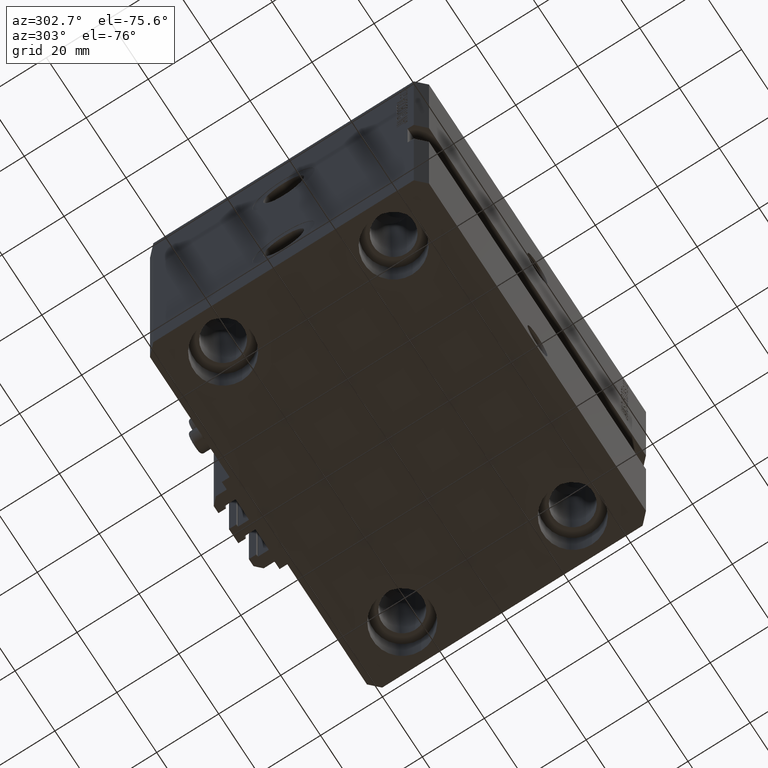
[diagram: clean part render]
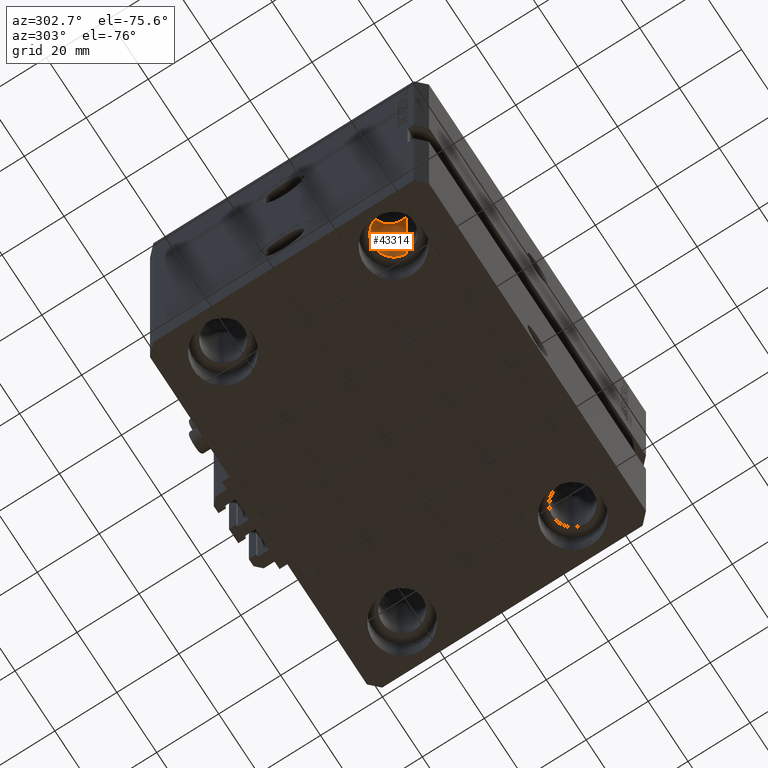
[diagram: same view with one face highlighted and labeled with its STEP entity id]
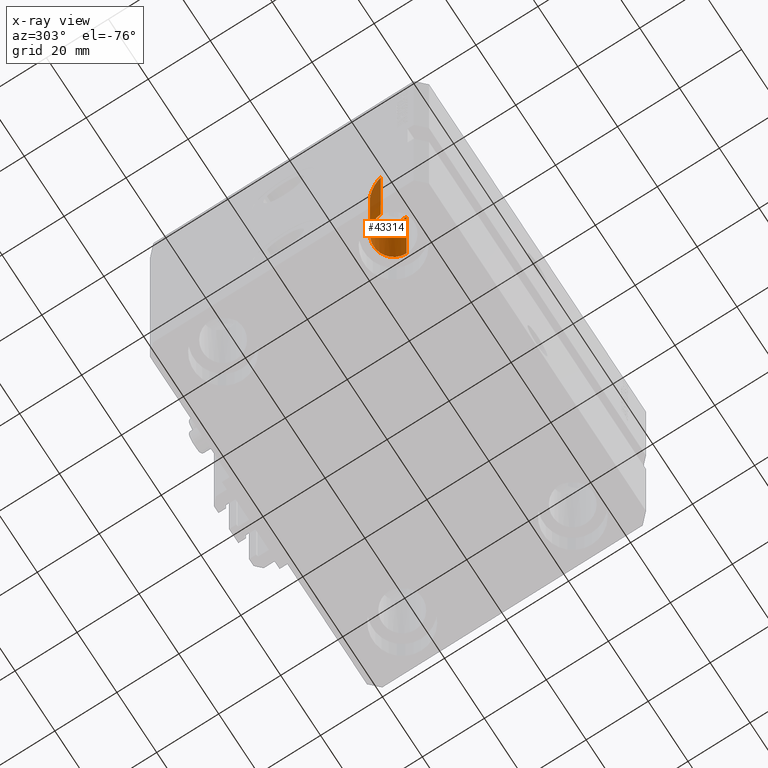
[diagram: x-ray of the same camera — body ghosted, the highlighted face saturated]
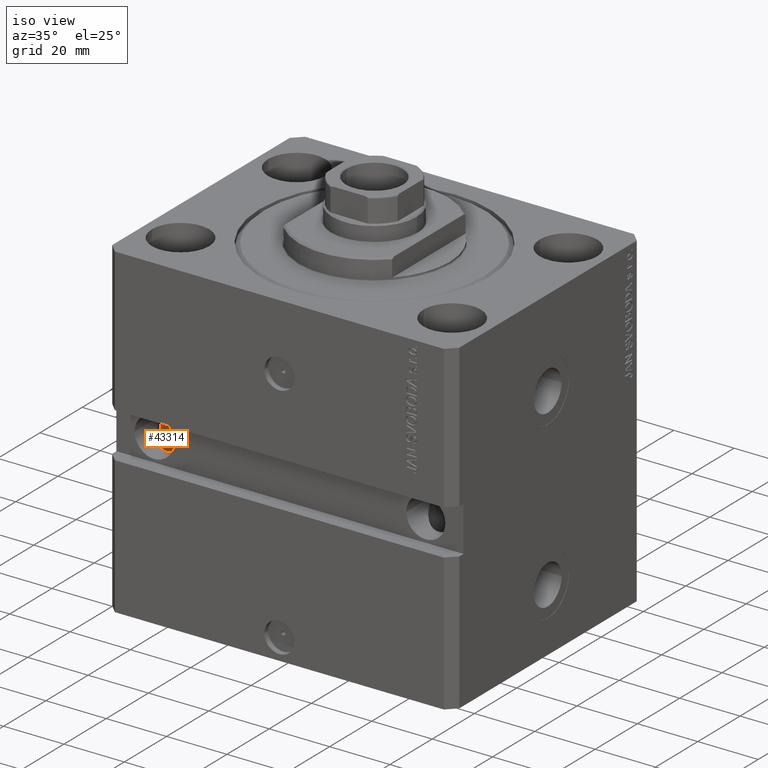
[diagram: same view with one face highlighted and labeled with its STEP entity id]
A machine part, auxiliary view. The second image highlights one B-rep face of the part: STEP entity #43314.
The next image is the same camera in x-ray: the body ghosted, the highlighted face saturated — about 18% of this face is hidden behind the body in this view.
A second angle (iso view) of the same face is appended — the face is thin or edge-on in the first view.
In plain terms, the highlighted cylindrical surface (edge-blend (fillet) strip) has radius 6.5 mm, axis along (0, 0, 1).
Its self-contained STEP definition (entity closure, byte-faithful):
#2239 = DIRECTION ( 'NONE',  ( 1.000000000000000000, 0.000000000000000000, 0.000000000000000000 ) ) ;
#2582 = VERTEX_POINT ( 'NONE', #34068 ) ;
#4122 = CARTESIAN_POINT ( 'NONE',  ( -51.49999999999999289, -27.49999999999999289, -55.00000000000001421 ) ) ;
#4680 =( BOUNDED_CURVE ( )  B_SPLINE_CURVE ( 3, ( #19077, #38201, #42183, #4122 ),
 .UNSPECIFIED., .F., .T. ) 
 B_SPLINE_CURVE_WITH_KNOTS ( ( 4, 4 ),
 ( 1.570796326794896558, 4.712388980384689674 ),
 .UNSPECIFIED. ) 
 CURVE ( )  GEOMETRIC_REPRESENTATION_ITEM ( )  RATIONAL_B_SPLINE_CURVE ( ( 1.000000000000000000, 0.3333333333333333703, 0.3333333333333333703, 1.000000000000000000 ) ) 
 REPRESENTATION_ITEM ( '' )  );
#5730 = CARTESIAN_POINT ( 'NONE',  ( -38.49999999999999289, -27.49999999999999289, -55.00000000000001421 ) ) ;
#5981 = DIRECTION ( 'NONE',  ( -0.000000000000000000, -0.000000000000000000, 1.000000000000000000 ) ) ;
#9710 = CYLINDRICAL_SURFACE ( 'NONE', #32014, 6.499999999999999112 ) ;
#9772 = EDGE_CURVE ( 'NONE', #2582, #16989, #48899, .T. ) ;
#9826 = EDGE_CURVE ( 'NONE', #27529, #16989, #4680, .T. ) ;
#11227 = VECTOR ( 'NONE', #24750, 1000.000000000000000 ) ;
#12795 = CARTESIAN_POINT ( 'NONE',  ( -38.50000000000000000, -27.49999999999999645, -108.0000000000000000 ) ) ;
#15770 = ORIENTED_EDGE ( 'NONE', *, *, #21498, .T. ) ;
#16385 = VECTOR ( 'NONE', #37222, 1000.000000000000000 ) ;
#16989 = VERTEX_POINT ( 'NONE', #48445 ) ;
#17023 = DIRECTION ( 'NONE',  ( -1.000000000000000000, 0.000000000000000000, 0.000000000000000000 ) ) ;
#19077 = CARTESIAN_POINT ( 'NONE',  ( -38.49999999999999289, -27.49999999999999289, -55.00000000000001421 ) ) ;
#20273 = LINE ( 'NONE', #12795, #11227 ) ;
#21498 = EDGE_CURVE ( 'NONE', #26657, #27529, #20273, .T. ) ;
#23981 = ORIENTED_EDGE ( 'NONE', *, *, #47840, .T. ) ;
#24750 = DIRECTION ( 'NONE',  ( -0.000000000000000000, -0.000000000000000000, 1.000000000000000000 ) ) ;
#24917 = CARTESIAN_POINT ( 'NONE',  ( -45.00000000000000000, -27.49999999999999645, -108.0000000000000000 ) ) ;
#25936 = ORIENTED_EDGE ( 'NONE', *, *, #9772, .F. ) ;
#26657 = VERTEX_POINT ( 'NONE', #37281 ) ;
#27529 = VERTEX_POINT ( 'NONE', #5730 ) ;
#28944 = CARTESIAN_POINT ( 'NONE',  ( -45.00000000000000000, -27.49999999999999645, -95.00000000000000000 ) ) ;
#29535 = CARTESIAN_POINT ( 'NONE',  ( -51.50000000000000000, -27.49999999999999645, -108.0000000000000000 ) ) ;
#32014 = AXIS2_PLACEMENT_3D ( 'NONE', #24917, #5981, #2239 ) ;
#32906 = DIRECTION ( 'NONE',  ( 0.000000000000000000, 0.000000000000000000, -1.000000000000000000 ) ) ;
#34068 = CARTESIAN_POINT ( 'NONE',  ( -51.50000000000000000, -27.49999999999999645, -95.00000000000000000 ) ) ;
#35448 = EDGE_LOOP ( 'NONE', ( #25936, #23981, #15770, #46839 ) ) ;
#37222 = DIRECTION ( 'NONE',  ( -0.000000000000000000, -0.000000000000000000, 1.000000000000000000 ) ) ;
#37281 = CARTESIAN_POINT ( 'NONE',  ( -38.50000000000000000, -27.49999999999999645, -95.00000000000000000 ) ) ;
#38201 = CARTESIAN_POINT ( 'NONE',  ( -38.49999999999999289, -14.49999999999999822, -68.00000000000000000 ) ) ;
#38499 = CIRCLE ( 'NONE', #47979, 6.499999999999999112 ) ;
#42183 = CARTESIAN_POINT ( 'NONE',  ( -51.50000000000000000, -14.49999999999999822, -68.00000000000000000 ) ) ;
#43314 = ADVANCED_FACE ( 'NONE', ( #43786 ), #9710, .F. ) ;
#43786 = FACE_OUTER_BOUND ( 'NONE', #35448, .T. ) ;
#46839 = ORIENTED_EDGE ( 'NONE', *, *, #9826, .T. ) ;
#47840 = EDGE_CURVE ( 'NONE', #2582, #26657, #38499, .T. ) ;
#47979 = AXIS2_PLACEMENT_3D ( 'NONE', #28944, #32906, #17023 ) ;
#48445 = CARTESIAN_POINT ( 'NONE',  ( -51.49999999999999289, -27.49999999999999289, -55.00000000000001421 ) ) ;
#48899 = LINE ( 'NONE', #29535, #16385 ) ;